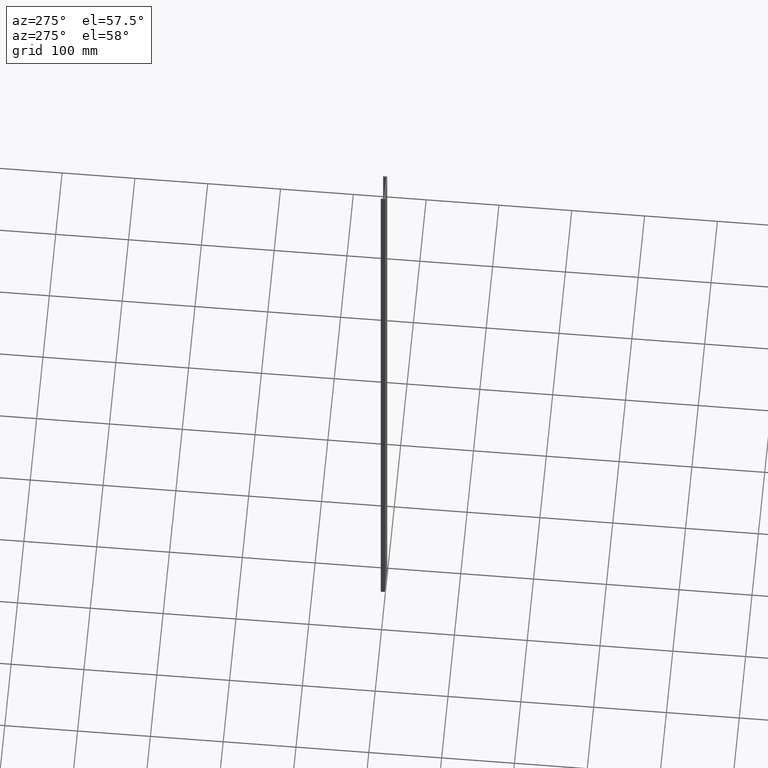
[diagram: clean part render]
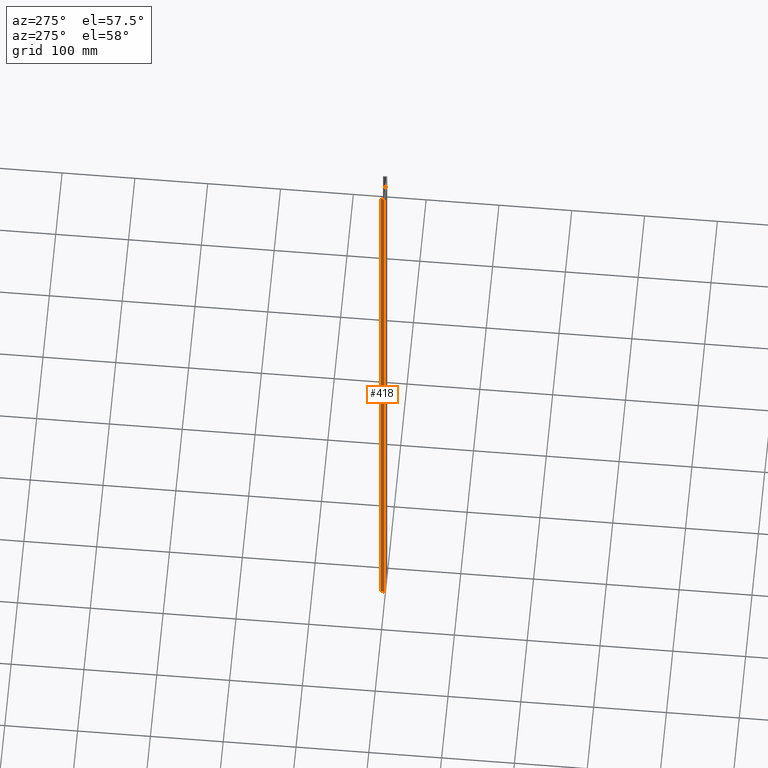
[diagram: same view with one face highlighted and labeled with its STEP entity id]
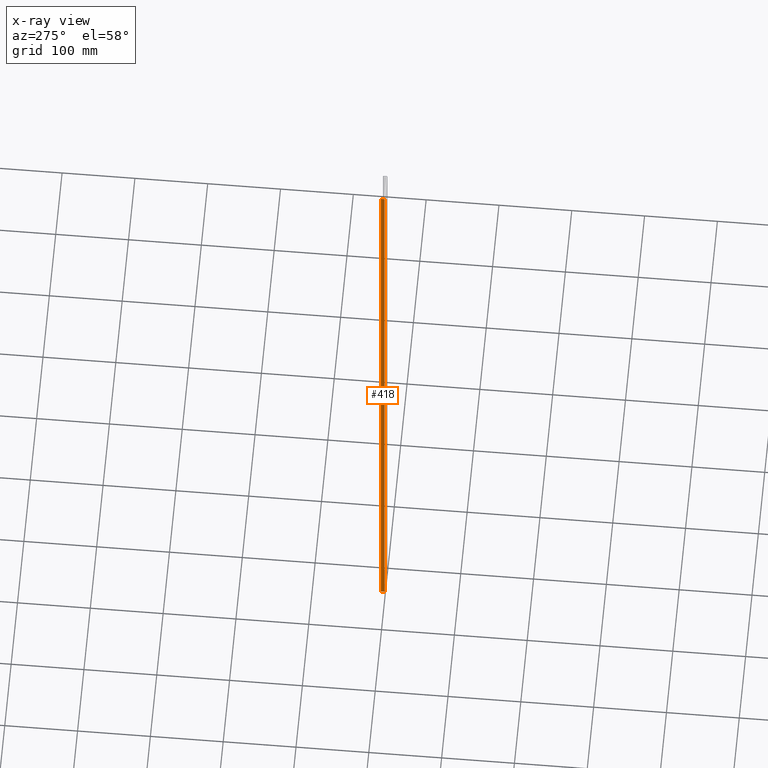
[diagram: x-ray of the same camera — body ghosted, the highlighted face saturated]
A machine part, auxiliary view. The second image highlights one B-rep face of the part: STEP entity #418.
The next image is the same camera in x-ray: the body ghosted, the highlighted face saturated — about 0% of this face is hidden behind the body in this view.
In plain terms, the highlighted planar face has unit normal (1, 0, 0).
Its self-contained STEP definition (entity closure, byte-faithful):
#77 = ORIENTED_EDGE ( 'NONE', *, *, #354, .T. ) ;
#93 = EDGE_LOOP ( 'NONE', ( #109, #77, #125, #126 ) ) ;
#109 = ORIENTED_EDGE ( 'NONE', *, *, #373, .T. ) ;
#125 = ORIENTED_EDGE ( 'NONE', *, *, #351, .F. ) ;
#126 = ORIENTED_EDGE ( 'NONE', *, *, #383, .T. ) ;
#142 = PLANE ( 'NONE',  #693 ) ;
#149 = DIRECTION ( 'NONE',  ( 1.000000000000000000, 0.0000000000000000000, 0.0000000000000000000 ) ) ;
#166 = FACE_OUTER_BOUND ( 'NONE', #93, .T. ) ;
#178 = DIRECTION ( 'NONE',  ( 0.0000000000000000000, 0.0000000000000000000, -1.000000000000000000 ) ) ;
#180 = CARTESIAN_POINT ( 'NONE',  ( 51.73745546312871800, 0.0000000000000000000, 1000.000000000000000 ) ) ;
#204 = LINE ( 'NONE', #205, #633 ) ;
#205 = CARTESIAN_POINT ( 'NONE',  ( 51.73745546312871800, 0.0000000000000000000, 1000.000000000000000 ) ) ;
#210 = CARTESIAN_POINT ( 'NONE',  ( 51.73745546312871800, 0.5000000000000000000, 1000.000000000000000 ) ) ;
#219 = DIRECTION ( 'NONE',  ( -0.0000000000000000000, -0.0000000000000000000, 1.000000000000000000 ) ) ;
#230 = DIRECTION ( 'NONE',  ( -0.0000000000000000000, -1.000000000000000000, -0.0000000000000000000 ) ) ;
#240 = LINE ( 'NONE', #210, #657 ) ;
#249 = VERTEX_POINT ( 'NONE', #287 ) ;
#256 = VERTEX_POINT ( 'NONE', #306 ) ;
#266 = VERTEX_POINT ( 'NONE', #335 ) ;
#278 = VERTEX_POINT ( 'NONE', #309 ) ;
#287 = CARTESIAN_POINT ( 'NONE',  ( 51.73745546312871800, 0.5000000000000000000, 0.0000000000000000000 ) ) ;
#306 = CARTESIAN_POINT ( 'NONE',  ( 51.73745546312871800, 5.453748472184605200, 0.0000000000000000000 ) ) ;
#309 = CARTESIAN_POINT ( 'NONE',  ( 51.73745546312871800, 0.5000000000000000000, 1000.000000000000000 ) ) ;
#335 = CARTESIAN_POINT ( 'NONE',  ( 51.73745546312871800, 5.453748472184605200, 1000.000000000000000 ) ) ;
#351 = EDGE_CURVE ( 'NONE', #266, #278, #204, .T. ) ;
#354 = EDGE_CURVE ( 'NONE', #249, #278, #240, .T. ) ;
#373 = EDGE_CURVE ( 'NONE', #256, #249, #472, .T. ) ;
#383 = EDGE_CURVE ( 'NONE', #266, #256, #445, .T. ) ;
#418 = ADVANCED_FACE ( 'NONE', ( #166 ), #142, .F. ) ;
#445 = LINE ( 'NONE', #467, #635 ) ;
#449 = CARTESIAN_POINT ( 'NONE',  ( 51.73745546312871800, 0.0000000000000000000, 0.0000000000000000000 ) ) ;
#460 = DIRECTION ( 'NONE',  ( -0.0000000000000000000, -1.000000000000000000, -0.0000000000000000000 ) ) ;
#467 = CARTESIAN_POINT ( 'NONE',  ( 51.73745546312871800, 5.453748472184605200, 1000.000000000000000 ) ) ;
#472 = LINE ( 'NONE', #449, #683 ) ;
#475 = DIRECTION ( 'NONE',  ( 0.0000000000000000000, 0.0000000000000000000, -1.000000000000000000 ) ) ;
#633 = VECTOR ( 'NONE', #230, 1000.000000000000000 ) ;
#635 = VECTOR ( 'NONE', #475, 1000.000000000000000 ) ;
#657 = VECTOR ( 'NONE', #219, 1000.000000000000000 ) ;
#683 = VECTOR ( 'NONE', #460, 1000.000000000000000 ) ;
#693 = AXIS2_PLACEMENT_3D ( 'NONE', #180, #149, #178 ) ;